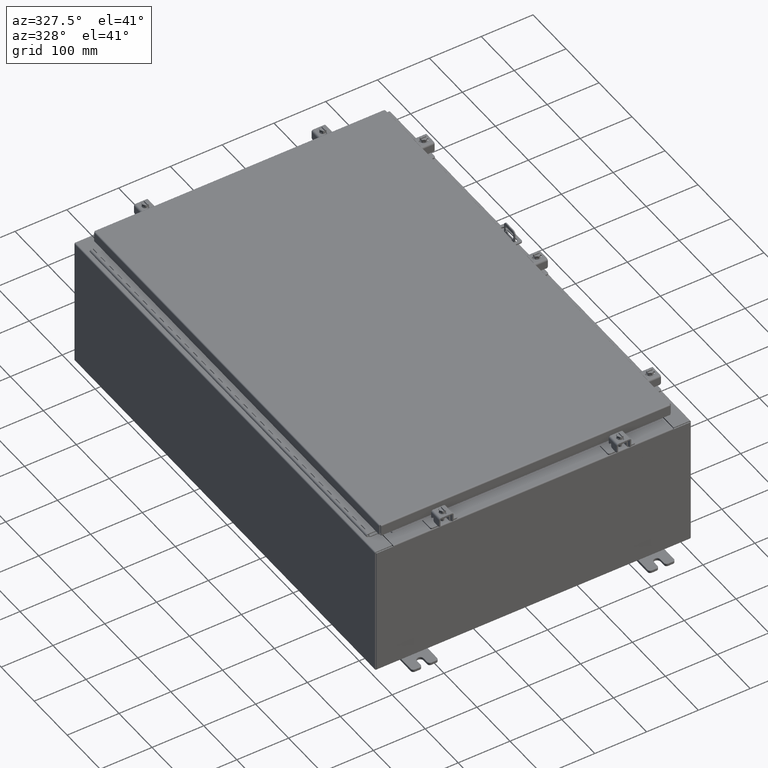
[diagram: clean part render]
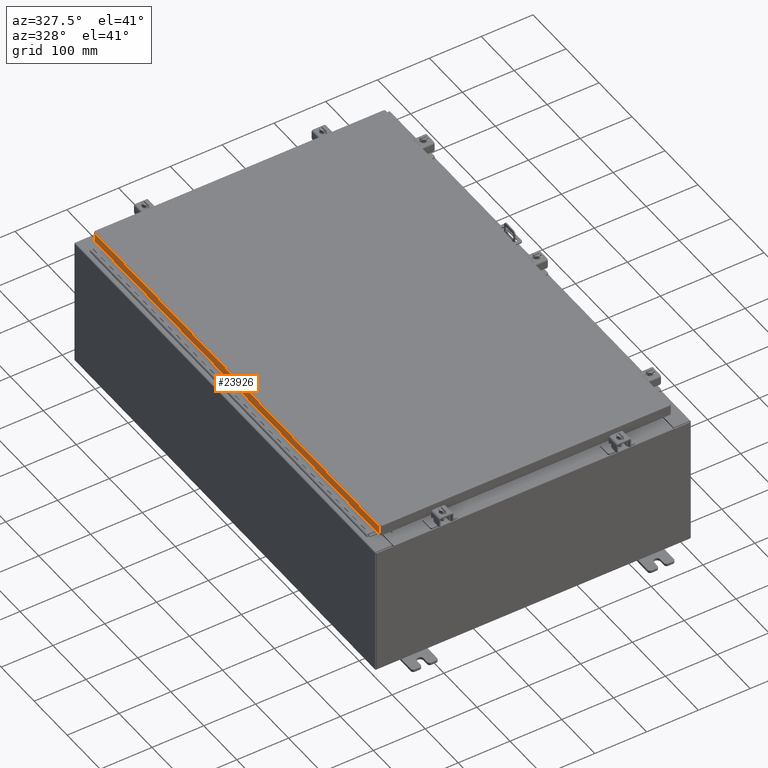
[diagram: same view with one face highlighted and labeled with its STEP entity id]
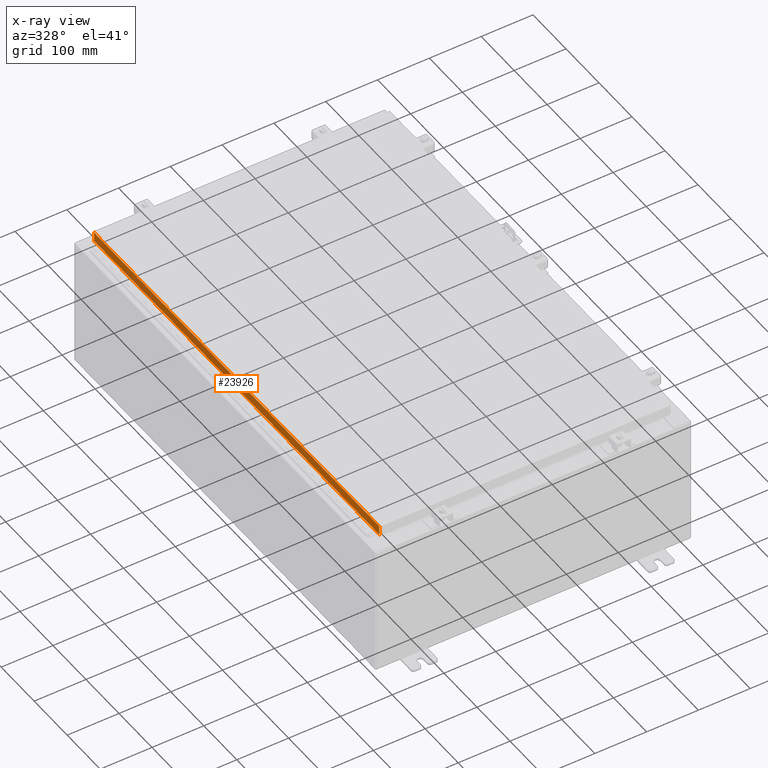
[diagram: x-ray of the same camera — body ghosted, the highlighted face saturated]
A machine part, auxiliary view. The second image highlights one B-rep face of the part: STEP entity #23926.
The next image is the same camera in x-ray: the body ghosted, the highlighted face saturated — about 0% of this face is hidden behind the body in this view.
In plain terms, the highlighted planar face has unit normal (1, 0, -0).
Its self-contained STEP definition (entity closure, byte-faithful):
#2894 = LINE ( 'NONE', #40935, #10557 ) ;
#3792 = VECTOR ( 'NONE', #41565, 39.37007874015748100 ) ;
#5607 = CARTESIAN_POINT ( 'NONE',  ( -11.07800000000000300, -17.09399999999999800, -0.08770000000000004200 ) ) ;
#5910 = LINE ( 'NONE', #32901, #29950 ) ;
#6382 = FACE_OUTER_BOUND ( 'NONE', #41739, .T. ) ;
#6498 = EDGE_CURVE ( 'NONE', #26306, #37602, #13487, .T. ) ;
#6914 = VERTEX_POINT ( 'NONE', #27783 ) ;
#8881 = DIRECTION ( 'NONE',  ( 6.392530697705130400E-017, -1.000000000000000000, 6.392530697705074900E-017 ) ) ;
#9307 = VERTEX_POINT ( 'NONE', #21641 ) ;
#10557 = VECTOR ( 'NONE', #37857, 39.37007874015748100 ) ;
#12848 = CARTESIAN_POINT ( 'NONE',  ( -11.07800000000000500, 17.00515786437628000, -0.7949999999999954900 ) ) ;
#13487 = LINE ( 'NONE', #30453, #3792 ) ;
#15482 = CARTESIAN_POINT ( 'NONE',  ( -11.07800000000000300, -7.081645506917722700E-016, 3.387282206785411200E-014 ) ) ;
#18790 = ORIENTED_EDGE ( 'NONE', *, *, #6498, .F. ) ;
#20637 = EDGE_CURVE ( 'NONE', #6914, #37602, #5910, .T. ) ;
#21641 = CARTESIAN_POINT ( 'NONE',  ( -11.07800000000000300, -17.00515786437626200, -0.08770000000000115200 ) ) ;
#22007 = CARTESIAN_POINT ( 'NONE',  ( -11.07800000000000500, -17.00515786437626200, -0.7949999999999996000 ) ) ;
#22053 = DIRECTION ( 'NONE',  ( -3.034122441942816500E-015, 0.0000000000000000000, -1.000000000000000000 ) ) ;
#23926 = ADVANCED_FACE ( 'NONE', ( #6382 ), #35029, .F. ) ;
#25947 = ORIENTED_EDGE ( 'NONE', *, *, #20637, .T. ) ;
#26306 = VERTEX_POINT ( 'NONE', #22007 ) ;
#27783 = CARTESIAN_POINT ( 'NONE',  ( -11.07800000000000500, 17.00515786437627600, -0.08770000000000223500 ) ) ;
#29950 = VECTOR ( 'NONE', #36153, 39.37007874015748100 ) ;
#30001 = ORIENTED_EDGE ( 'NONE', *, *, #30192, .F. ) ;
#30192 = EDGE_CURVE ( 'NONE', #9307, #26306, #2894, .T. ) ;
#30453 = CARTESIAN_POINT ( 'NONE',  ( -11.07800000000000500, -17.09399999999999800, -0.7949999999999997100 ) ) ;
#32427 = AXIS2_PLACEMENT_3D ( 'NONE', #15482, #41466, #22053 ) ;
#32901 = CARTESIAN_POINT ( 'NONE',  ( -11.07800000000000300, 17.00515786437627600, 1.526192047629567600E-013 ) ) ;
#35029 = PLANE ( 'NONE',  #32427 ) ;
#35179 = ORIENTED_EDGE ( 'NONE', *, *, #36865, .F. ) ;
#36153 = DIRECTION ( 'NONE',  ( -3.034122441942816500E-015, 6.982962677686265900E-015, -1.000000000000000000 ) ) ;
#36527 = LINE ( 'NONE', #5607, #38518 ) ;
#36865 = EDGE_CURVE ( 'NONE', #6914, #9307, #36527, .T. ) ;
#37602 = VERTEX_POINT ( 'NONE', #12848 ) ;
#37857 = DIRECTION ( 'NONE',  ( -3.034122441942816500E-015, 6.982962677686265900E-015, -1.000000000000000000 ) ) ;
#38518 = VECTOR ( 'NONE', #8881, 39.37007874015748100 ) ;
#40935 = CARTESIAN_POINT ( 'NONE',  ( -11.07800000000000300, -17.00515786437626500, -0.07469999999999976700 ) ) ;
#41466 = DIRECTION ( 'NONE',  ( 1.000000000000000000, 6.392530697705110700E-017, -3.034122441942816500E-015 ) ) ;
#41565 = DIRECTION ( 'NONE',  ( -6.392530697705073700E-017, 1.000000000000000000, 1.238552822680358100E-016 ) ) ;
#41739 = EDGE_LOOP ( 'NONE', ( #35179, #25947, #18790, #30001 ) ) ;